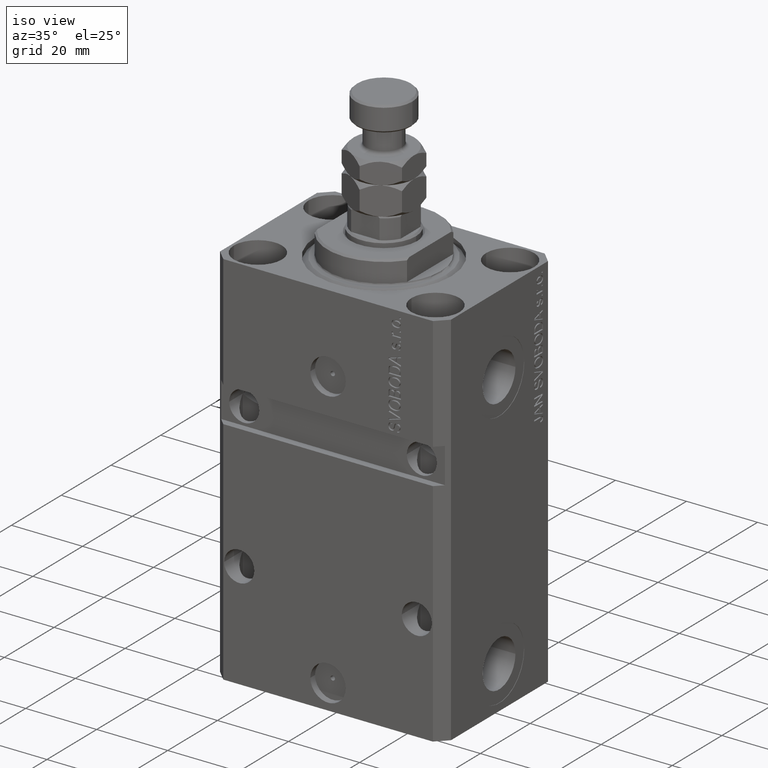
[diagram: clean part render]
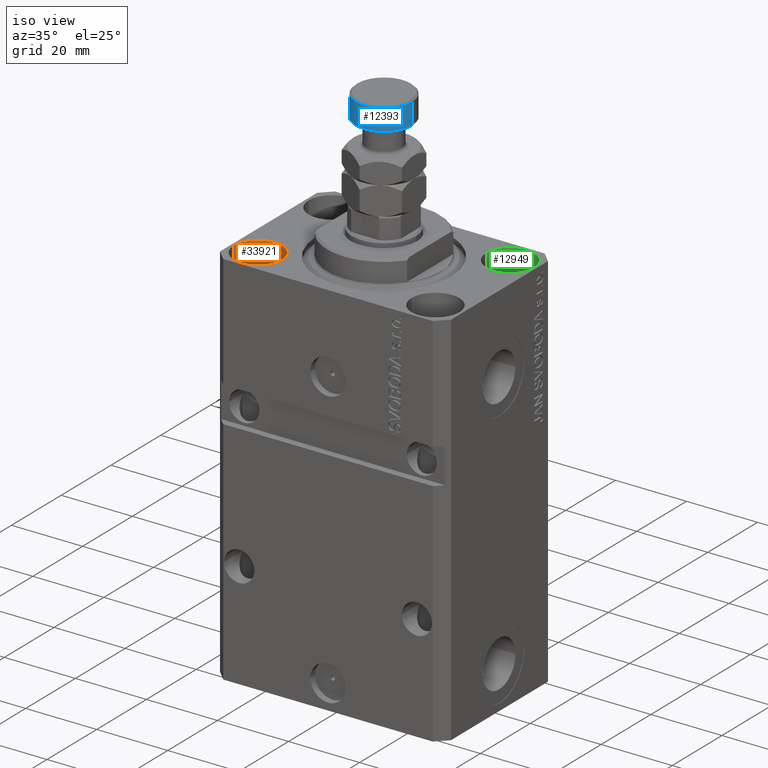
[diagram: same view with three faces highlighted in distinct colors, each labeled with its STEP entity id]
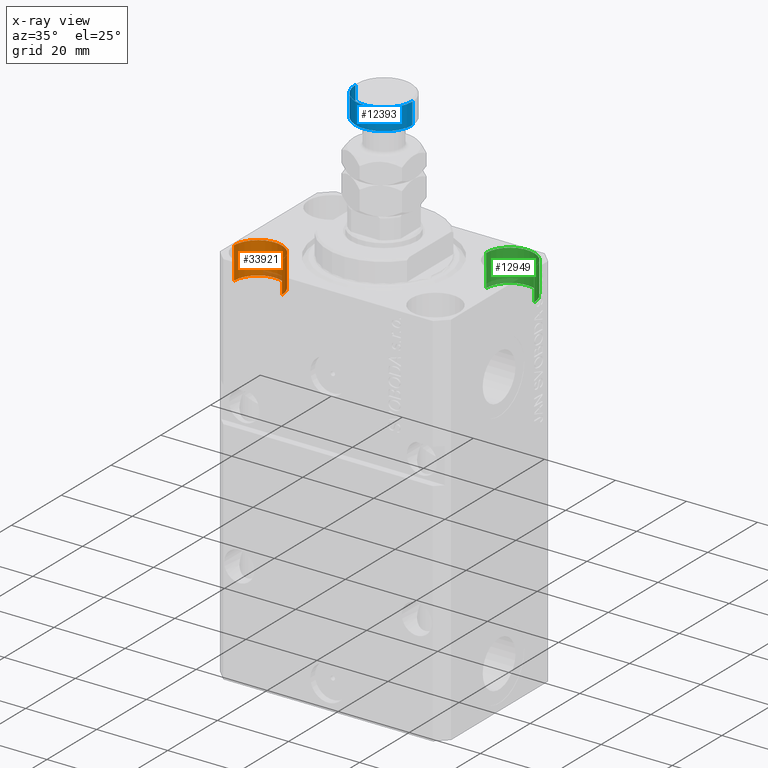
[diagram: x-ray of the same camera — body ghosted, the three highlighted faces saturated]
A machine part, iso view with three faces highlighted in distinct colors.
The next image is the same camera in x-ray (body ghosted, the three faces saturated) — at least one of them is partly hidden behind the body in this view.
Their STEP definitions:

[orange] entity #33921 — the highlighted cylindrical surface (edge-blend (fillet) strip) has radius 6.75 mm, axis along (0, 0, 1).
#510 = DIRECTION ( 'NONE',  ( 1.000000000000000000, 0.000000000000000000, 0.000000000000000000 ) ) ;
#725 = CARTESIAN_POINT ( 'NONE',  ( -25.00000000000000355, -15.00000000000000000, 0.000000000000000000 ) ) ;
#2174 = CARTESIAN_POINT ( 'NONE',  ( -31.75000000004154899, -15.00000000000000000, -9.000000000000000000 ) ) ;
#3039 = EDGE_CURVE ( 'NONE', #15025, #7575, #11557, .T. ) ;
#3880 = DIRECTION ( 'NONE',  ( 0.000000000000000000, 0.000000000000000000, 1.000000000000000000 ) ) ;
#4312 = CYLINDRICAL_SURFACE ( 'NONE', #21871, 6.750000000041541881 ) ;
#7575 = VERTEX_POINT ( 'NONE', #10479 ) ;
#7682 = DIRECTION ( 'NONE',  ( 1.000000000000000000, 0.000000000000000000, 0.000000000000000000 ) ) ;
#7880 = VECTOR ( 'NONE', #26355, 1000.000000000000000 ) ;
#7886 = CARTESIAN_POINT ( 'NONE',  ( -25.00000000000000355, -15.00000000000000000, -9.000000000000000000 ) ) ;
#9990 = ORIENTED_EDGE ( 'NONE', *, *, #13854, .T. ) ;
#10479 = CARTESIAN_POINT ( 'NONE',  ( -18.24999999995846167, -15.00000000000000000, 0.000000000000000000 ) ) ;
#11557 = LINE ( 'NONE', #26115, #7880 ) ;
#12404 = EDGE_CURVE ( 'NONE', #15025, #27266, #43952, .T. ) ;
#13854 = EDGE_CURVE ( 'NONE', #7575, #18340, #25630, .T. ) ;
#15025 = VERTEX_POINT ( 'NONE', #34555 ) ;
#15261 = DIRECTION ( 'NONE',  ( 0.000000000000000000, 0.000000000000000000, 1.000000000000000000 ) ) ;
#15772 = DIRECTION ( 'NONE',  ( -0.000000000000000000, -0.000000000000000000, 1.000000000000000000 ) ) ;
#18340 = VERTEX_POINT ( 'NONE', #23141 ) ;
#19582 = LINE ( 'NONE', #2174, #28400 ) ;
#21871 = AXIS2_PLACEMENT_3D ( 'NONE', #7886, #36725, #510 ) ;
#22199 = FACE_OUTER_BOUND ( 'NONE', #42239, .T. ) ;
#23141 = CARTESIAN_POINT ( 'NONE',  ( -31.75000000004154899, -15.00000000000000000, 0.000000000000000000 ) ) ;
#24081 = EDGE_CURVE ( 'NONE', #27266, #18340, #19582, .T. ) ;
#25630 = CIRCLE ( 'NONE', #43978, 6.750000000041541881 ) ;
#26115 = CARTESIAN_POINT ( 'NONE',  ( -18.24999999995846167, -15.00000000000000000, -9.000000000000000000 ) ) ;
#26355 = DIRECTION ( 'NONE',  ( -0.000000000000000000, -0.000000000000000000, 1.000000000000000000 ) ) ;
#27266 = VERTEX_POINT ( 'NONE', #46905 ) ;
#28400 = VECTOR ( 'NONE', #15772, 1000.000000000000000 ) ;
#28757 = AXIS2_PLACEMENT_3D ( 'NONE', #36756, #3880, #7682 ) ;
#29802 = DIRECTION ( 'NONE',  ( 1.000000000000000000, 0.000000000000000000, 0.000000000000000000 ) ) ;
#33921 = ADVANCED_FACE ( 'NONE', ( #22199 ), #4312, .F. ) ;
#34555 = CARTESIAN_POINT ( 'NONE',  ( -18.24999999995846167, -15.00000000000000000, -9.000000000000000000 ) ) ;
#35090 = ORIENTED_EDGE ( 'NONE', *, *, #24081, .F. ) ;
#36725 = DIRECTION ( 'NONE',  ( -0.000000000000000000, -0.000000000000000000, 1.000000000000000000 ) ) ;
#36756 = CARTESIAN_POINT ( 'NONE',  ( -25.00000000000000355, -15.00000000000000000, -9.000000000000000000 ) ) ;
#40031 = ORIENTED_EDGE ( 'NONE', *, *, #12404, .F. ) ;
#42239 = EDGE_LOOP ( 'NONE', ( #35090, #40031, #47122, #9990 ) ) ;
#43952 = CIRCLE ( 'NONE', #28757, 6.750000000041541881 ) ;
#43978 = AXIS2_PLACEMENT_3D ( 'NONE', #725, #15261, #29802 ) ;
#46905 = CARTESIAN_POINT ( 'NONE',  ( -31.75000000004154899, -15.00000000000000000, -9.000000000000000000 ) ) ;
#47122 = ORIENTED_EDGE ( 'NONE', *, *, #3039, .T. ) ;

[blue] entity #12393 — the highlighted cylindrical surface (edge-blend (fillet) strip) has radius 8 mm, axis along (-0, -0, -1).
#2463 = CARTESIAN_POINT ( 'NONE',  ( -8.000000000000000000, 0.000000000000000000, 28.00000000000000000 ) ) ;
#2530 = EDGE_CURVE ( 'NONE', #20097, #15536, #17107, .T. ) ;
#5699 = CARTESIAN_POINT ( 'NONE',  ( 8.000000000000000000, 9.797174393178825657E-16, 28.00000000000000000 ) ) ;
#5861 = ORIENTED_EDGE ( 'NONE', *, *, #2530, .F. ) ;
#8627 = VECTOR ( 'NONE', #31428, 1000.000000000000000 ) ;
#8941 = AXIS2_PLACEMENT_3D ( 'NONE', #36533, #47041, #39645 ) ;
#9505 = DIRECTION ( 'NONE',  ( 1.000000000000000000, 0.000000000000000000, 0.000000000000000000 ) ) ;
#10539 = CARTESIAN_POINT ( 'NONE',  ( -8.000000000000000000, 0.000000000000000000, 21.50000000000000711 ) ) ;
#11037 = DIRECTION ( 'NONE',  ( 1.000000000000000000, 0.000000000000000000, 0.000000000000000000 ) ) ;
#12393 = ADVANCED_FACE ( 'NONE', ( #39408 ), #28930, .T. ) ;
#13276 = EDGE_CURVE ( 'NONE', #33740, #15536, #37033, .T. ) ;
#15536 = VERTEX_POINT ( 'NONE', #23529 ) ;
#17107 = LINE ( 'NONE', #5699, #8627 ) ;
#17151 = ORIENTED_EDGE ( 'NONE', *, *, #30689, .T. ) ;
#17848 = DIRECTION ( 'NONE',  ( 0.000000000000000000, 0.000000000000000000, -1.000000000000000000 ) ) ;
#18213 = CARTESIAN_POINT ( 'NONE',  ( 0.000000000000000000, 0.000000000000000000, 21.50000000000000711 ) ) ;
#20097 = VERTEX_POINT ( 'NONE', #35629 ) ;
#21186 = EDGE_CURVE ( 'NONE', #20097, #34745, #36020, .T. ) ;
#21549 = DIRECTION ( 'NONE',  ( -0.000000000000000000, -0.000000000000000000, 1.000000000000000000 ) ) ;
#23529 = CARTESIAN_POINT ( 'NONE',  ( 8.000000000000000000, 9.797174393178825657E-16, 21.50000000000000711 ) ) ;
#26267 = CARTESIAN_POINT ( 'NONE',  ( -8.000000000000000000, 0.000000000000000000, 27.50000000000000000 ) ) ;
#27297 = LINE ( 'NONE', #2463, #36216 ) ;
#28930 = CYLINDRICAL_SURFACE ( 'NONE', #8941, 8.000000000000000000 ) ;
#30689 = EDGE_CURVE ( 'NONE', #34745, #33740, #27297, .T. ) ;
#31428 = DIRECTION ( 'NONE',  ( -0.000000000000000000, -0.000000000000000000, -1.000000000000000000 ) ) ;
#33740 = VERTEX_POINT ( 'NONE', #10539 ) ;
#34745 = VERTEX_POINT ( 'NONE', #26267 ) ;
#34887 = DIRECTION ( 'NONE',  ( -0.000000000000000000, -0.000000000000000000, -1.000000000000000000 ) ) ;
#35629 = CARTESIAN_POINT ( 'NONE',  ( 8.000000000000000000, 9.797174393178825657E-16, 27.50000000000000000 ) ) ;
#35719 = CARTESIAN_POINT ( 'NONE',  ( 0.000000000000000000, 0.000000000000000000, 27.50000000000000000 ) ) ;
#36020 = CIRCLE ( 'NONE', #42104, 8.000000000000000000 ) ;
#36216 = VECTOR ( 'NONE', #34887, 1000.000000000000000 ) ;
#36533 = CARTESIAN_POINT ( 'NONE',  ( 0.000000000000000000, 0.000000000000000000, 28.00000000000000000 ) ) ;
#37033 = CIRCLE ( 'NONE', #43875, 8.000000000000000000 ) ;
#37429 = ORIENTED_EDGE ( 'NONE', *, *, #21186, .T. ) ;
#39408 = FACE_OUTER_BOUND ( 'NONE', #40902, .T. ) ;
#39645 = DIRECTION ( 'NONE',  ( -1.000000000000000000, 0.000000000000000000, 0.000000000000000000 ) ) ;
#40902 = EDGE_LOOP ( 'NONE', ( #5861, #37429, #17151, #42371 ) ) ;
#42104 = AXIS2_PLACEMENT_3D ( 'NONE', #35719, #17848, #9505 ) ;
#42371 = ORIENTED_EDGE ( 'NONE', *, *, #13276, .T. ) ;
#43875 = AXIS2_PLACEMENT_3D ( 'NONE', #18213, #21549, #11037 ) ;
#47041 = DIRECTION ( 'NONE',  ( -0.000000000000000000, -0.000000000000000000, -1.000000000000000000 ) ) ;

[green] entity #12949 — the highlighted cylindrical surface (edge-blend (fillet) strip) has radius 6.75 mm, axis along (0, 0, 1).
#1581 = LINE ( 'NONE', #20160, #5848 ) ;
#3338 = VERTEX_POINT ( 'NONE', #36761 ) ;
#3928 = DIRECTION ( 'NONE',  ( 0.000000000000000000, 0.000000000000000000, 1.000000000000000000 ) ) ;
#5848 = VECTOR ( 'NONE', #41141, 1000.000000000000000 ) ;
#7526 = CARTESIAN_POINT ( 'NONE',  ( 24.99999999999999645, 15.00000000000000888, -9.000000000000000000 ) ) ;
#7548 = VERTEX_POINT ( 'NONE', #37015 ) ;
#10557 = EDGE_CURVE ( 'NONE', #7548, #3338, #1581, .T. ) ;
#10856 = DIRECTION ( 'NONE',  ( -0.000000000000000000, -0.000000000000000000, 1.000000000000000000 ) ) ;
#11320 = CARTESIAN_POINT ( 'NONE',  ( 24.99999999999999645, 15.00000000000000888, 0.000000000000000000 ) ) ;
#12126 = EDGE_CURVE ( 'NONE', #3338, #44129, #46217, .T. ) ;
#12319 = LINE ( 'NONE', #30448, #28079 ) ;
#12949 = ADVANCED_FACE ( 'NONE', ( #18265 ), #29690, .F. ) ;
#14899 = DIRECTION ( 'NONE',  ( 1.000000000000000000, 0.000000000000000000, 0.000000000000000000 ) ) ;
#15053 = ORIENTED_EDGE ( 'NONE', *, *, #12126, .T. ) ;
#18265 = FACE_OUTER_BOUND ( 'NONE', #38516, .T. ) ;
#20160 = CARTESIAN_POINT ( 'NONE',  ( 31.74999999995845101, 15.00000000000000888, -9.000000000000000000 ) ) ;
#21606 = DIRECTION ( 'NONE',  ( 1.000000000000000000, 0.000000000000000000, 0.000000000000000000 ) ) ;
#22030 = CARTESIAN_POINT ( 'NONE',  ( 18.25000000004154543, 15.00000000000000888, 0.000000000000000000 ) ) ;
#22130 = CARTESIAN_POINT ( 'NONE',  ( 24.99999999999999645, 15.00000000000000888, -9.000000000000000000 ) ) ;
#25665 = AXIS2_PLACEMENT_3D ( 'NONE', #11320, #3928, #14899 ) ;
#26183 = EDGE_CURVE ( 'NONE', #7548, #44134, #46732, .T. ) ;
#26184 = DIRECTION ( 'NONE',  ( 1.000000000000000000, 0.000000000000000000, 0.000000000000000000 ) ) ;
#28079 = VECTOR ( 'NONE', #44744, 1000.000000000000000 ) ;
#29049 = DIRECTION ( 'NONE',  ( 0.000000000000000000, 0.000000000000000000, 1.000000000000000000 ) ) ;
#29690 = CYLINDRICAL_SURFACE ( 'NONE', #32567, 6.749999999958452790 ) ;
#30448 = CARTESIAN_POINT ( 'NONE',  ( 18.25000000004154543, 15.00000000000000888, -9.000000000000000000 ) ) ;
#32567 = AXIS2_PLACEMENT_3D ( 'NONE', #7526, #10856, #21606 ) ;
#33209 = CARTESIAN_POINT ( 'NONE',  ( 18.25000000004154543, 15.00000000000000888, -9.000000000000000000 ) ) ;
#36761 = CARTESIAN_POINT ( 'NONE',  ( 31.74999999995845101, 15.00000000000000888, 0.000000000000000000 ) ) ;
#36791 = ORIENTED_EDGE ( 'NONE', *, *, #41415, .F. ) ;
#37015 = CARTESIAN_POINT ( 'NONE',  ( 31.74999999995845101, 15.00000000000000888, -9.000000000000000000 ) ) ;
#38516 = EDGE_LOOP ( 'NONE', ( #36791, #44671, #40316, #15053 ) ) ;
#40316 = ORIENTED_EDGE ( 'NONE', *, *, #10557, .T. ) ;
#41141 = DIRECTION ( 'NONE',  ( -0.000000000000000000, -0.000000000000000000, 1.000000000000000000 ) ) ;
#41415 = EDGE_CURVE ( 'NONE', #44134, #44129, #12319, .T. ) ;
#44129 = VERTEX_POINT ( 'NONE', #22030 ) ;
#44134 = VERTEX_POINT ( 'NONE', #33209 ) ;
#44671 = ORIENTED_EDGE ( 'NONE', *, *, #26183, .F. ) ;
#44744 = DIRECTION ( 'NONE',  ( -0.000000000000000000, -0.000000000000000000, 1.000000000000000000 ) ) ;
#45237 = AXIS2_PLACEMENT_3D ( 'NONE', #22130, #29049, #26184 ) ;
#46217 = CIRCLE ( 'NONE', #25665, 6.749999999958452790 ) ;
#46732 = CIRCLE ( 'NONE', #45237, 6.749999999958452790 ) ;